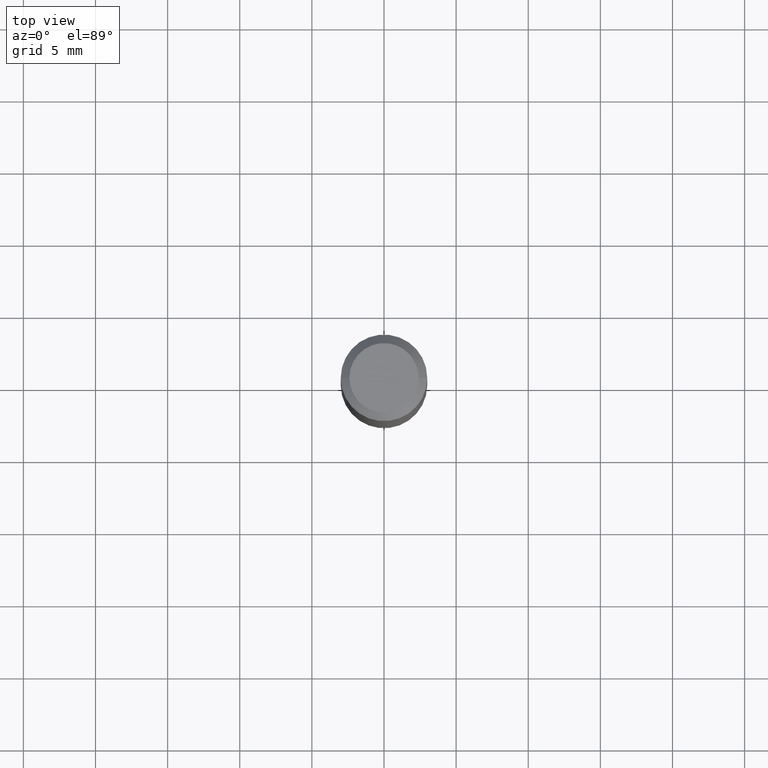
[diagram: clean part render]
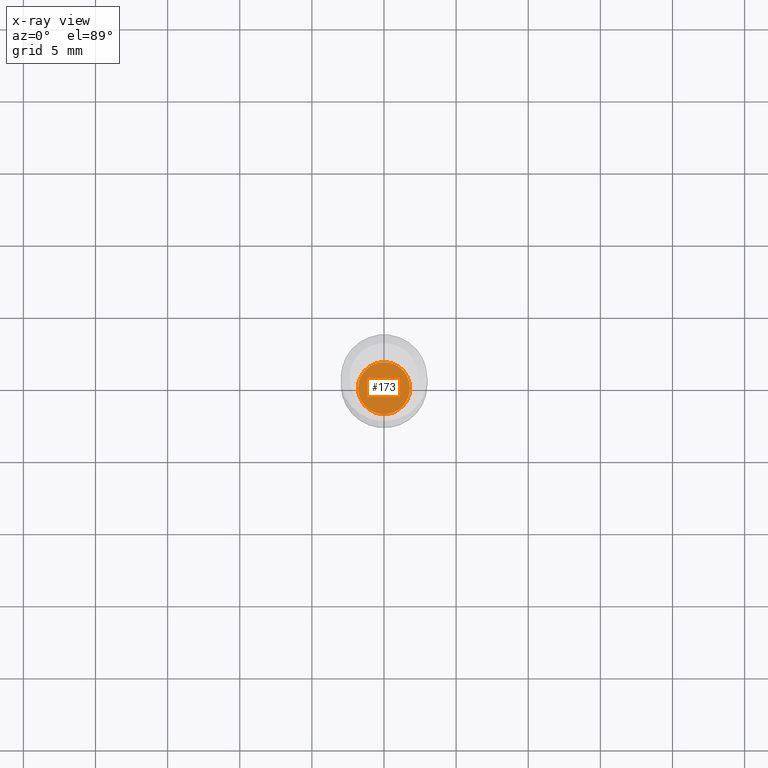
[diagram: x-ray — body ghosted, one internal face saturated and labeled with its STEP entity id]
A machine part, top view, then the same camera in x-ray: the body is ghosted and one INTERNAL B-rep face — a face not visible from any outside direction — is saturated and labeled: STEP entity #173.
In plain terms, the highlighted planar face has unit normal (0, -0, -1).
Its self-contained STEP definition (entity closure, byte-faithful):
#1 = AXIS2_PLACEMENT_3D ( 'NONE', #162, #113, #68 ) ;
#37 = CIRCLE ( 'NONE', #344, 0.07084999999999999631 ) ;
#41 = ORIENTED_EDGE ( 'NONE', *, *, #158, .T. ) ;
#49 = VERTEX_POINT ( 'NONE', #458 ) ;
#63 = DIRECTION ( 'NONE',  ( 1.000000000000000000, -6.982962677686263555E-15, 0.000000000000000000 ) ) ;
#68 = DIRECTION ( 'NONE',  ( -1.000000000000000000, 6.982962677686265922E-15, -4.876176775795935793E-29 ) ) ;
#75 = DIRECTION ( 'NONE',  ( -2.445468806185136597E-29, 3.491481338843145583E-15, 1.000000000000000000 ) ) ;
#107 = CARTESIAN_POINT ( 'NONE',  ( 4.024018920577642301E-29, -5.745232543066395437E-15, -1.645499999999999963 ) ) ;
#113 = DIRECTION ( 'NONE',  ( 2.438088387897960049E-29, -3.491481338843145188E-15, -1.000000000000000000 ) ) ;
#151 = CARTESIAN_POINT ( 'NONE',  ( 4.024018920577642301E-29, -5.745232543066395437E-15, -1.645499999999999963 ) ) ;
#158 = EDGE_CURVE ( 'NONE', #49, #406, #37, .T. ) ;
#162 = CARTESIAN_POINT ( 'NONE',  ( 4.024018920577642301E-29, -5.745232543066395437E-15, -1.645499999999999963 ) ) ;
#173 = ADVANCED_FACE ( 'NONE', ( #465 ), #229, .F. ) ;
#216 = EDGE_CURVE ( 'NONE', #406, #49, #481, .T. ) ;
#229 = PLANE ( 'NONE',  #1 ) ;
#236 = EDGE_LOOP ( 'NONE', ( #41, #379 ) ) ;
#301 = CARTESIAN_POINT ( 'NONE',  ( -0.07084999999999999631, -5.805687251003533208E-15, -1.645499999999999963 ) ) ;
#314 = DIRECTION ( 'NONE',  ( 1.000000000000000000, -6.982962677686263555E-15, 0.000000000000000000 ) ) ;
#343 = DIRECTION ( 'NONE',  ( -2.445468806185136597E-29, 3.491481338843145583E-15, 1.000000000000000000 ) ) ;
#344 = AXIS2_PLACEMENT_3D ( 'NONE', #107, #343, #63 ) ;
#379 = ORIENTED_EDGE ( 'NONE', *, *, #216, .T. ) ;
#406 = VERTEX_POINT ( 'NONE', #301 ) ;
#458 = CARTESIAN_POINT ( 'NONE',  ( 0.07084999999999999631, -6.239975448780467692E-15, -1.645499999999999963 ) ) ;
#465 = FACE_OUTER_BOUND ( 'NONE', #236, .T. ) ;
#481 = CIRCLE ( 'NONE', #492, 0.07084999999999999631 ) ;
#492 = AXIS2_PLACEMENT_3D ( 'NONE', #151, #75, #314 ) ;